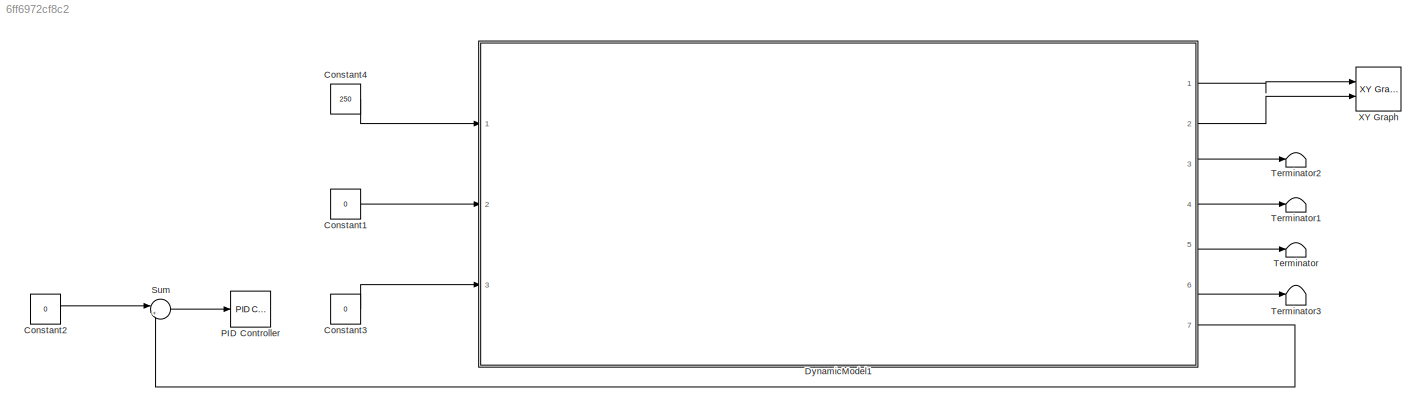
MODEL slx_6ff6972cf8c2
KIND model
CONFIG AbsTol = auto
CONFIG EnableMultiTasking = off
CONFIG FixedStep = 0.1
CONFIG MaxStep = auto
CONFIG MinStep = auto
CONFIG RelTol = 1e-3
CONFIG SampleTimeConstraint = Unconstrained
CONFIG Solver = VariableStepAuto
CONFIG SolverName = VariableStepAuto
CONFIG StartTime = 0.0
CONFIG StopTime = 100
BLOCK [Constant] Constant1
  Value = 0
BLOCK [Constant] Constant2
  Value = 0
BLOCK [Constant] Constant3
  Value = 0
BLOCK [Constant] Constant4
  Value = 250
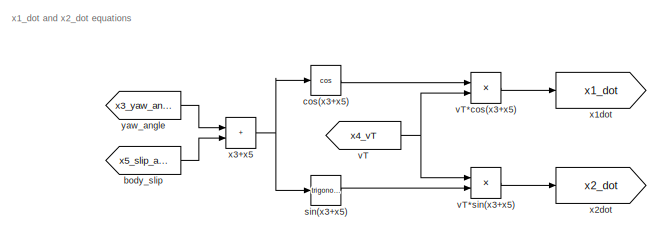
[diagram: DynamicModel1 - part 1/10, top left region]
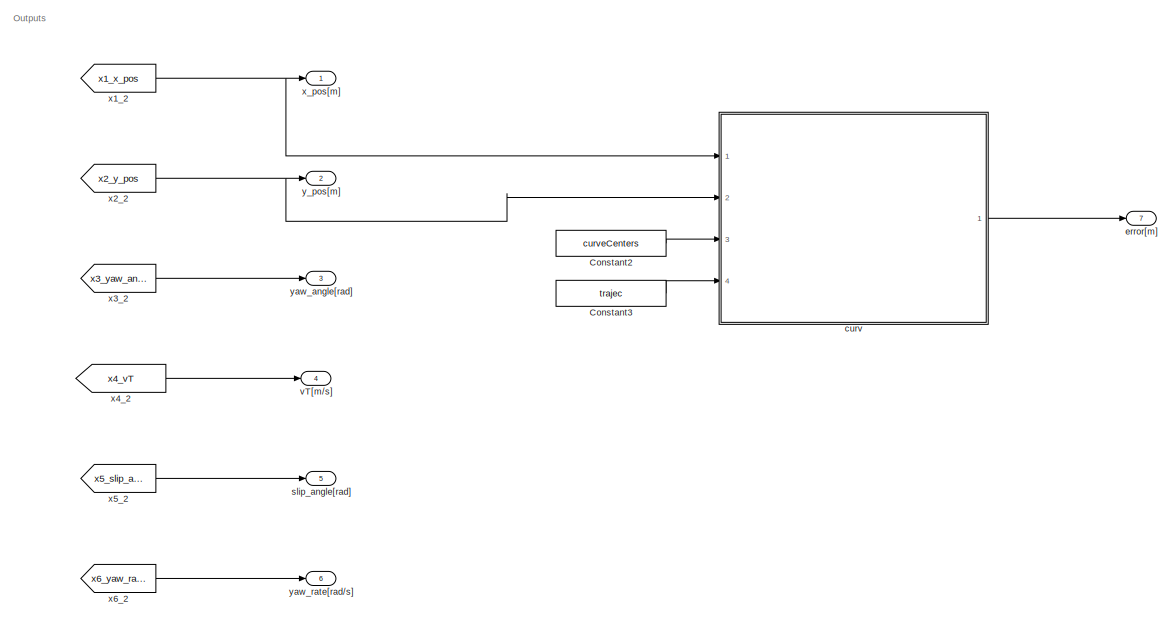
[diagram: DynamicModel1 - part 2/10, top right region]
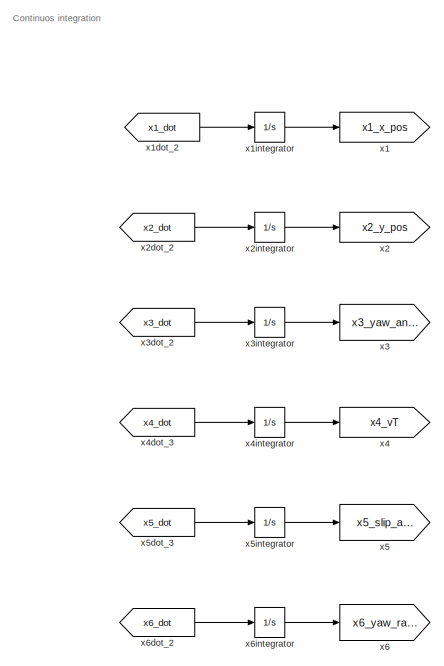
[diagram: DynamicModel1 - part 3/10, top right region]
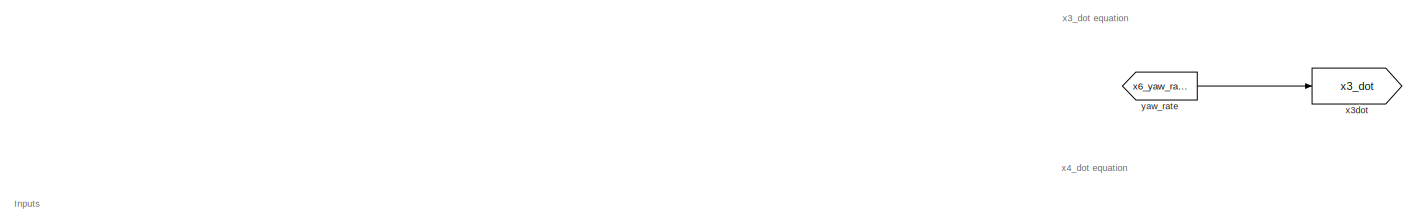
[diagram: DynamicModel1 - part 4/10, top left region]
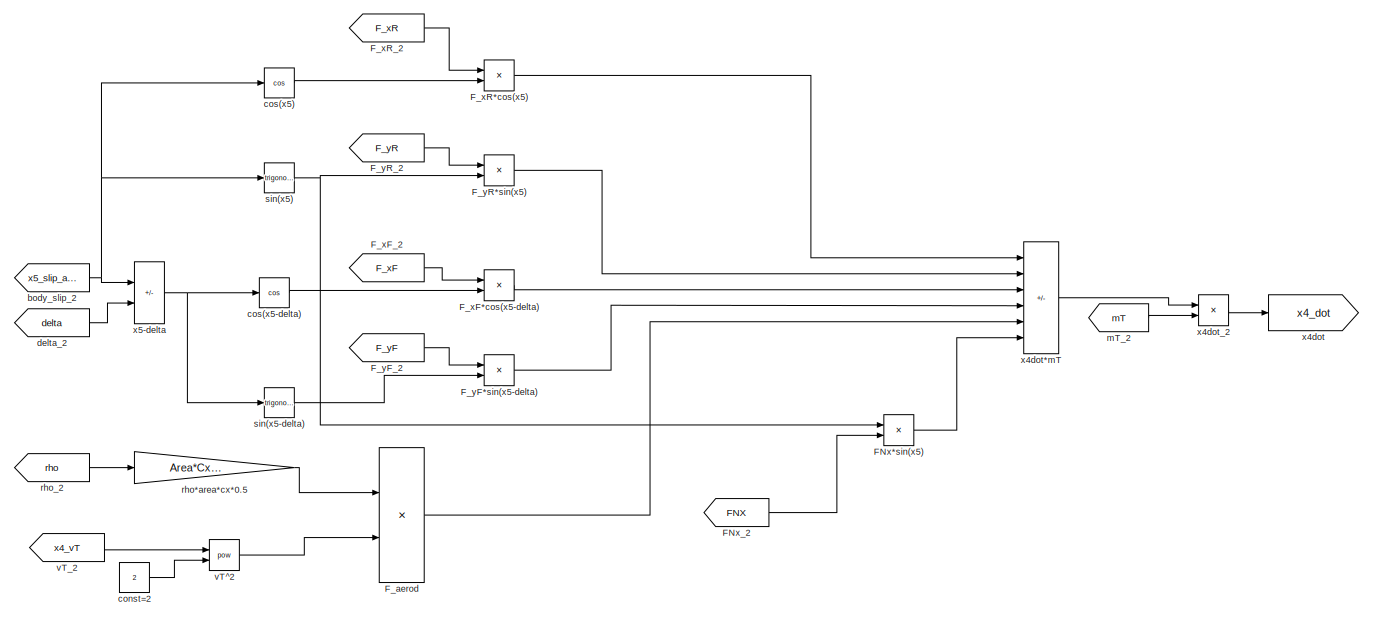
[diagram: DynamicModel1 - part 5/10, top left region]
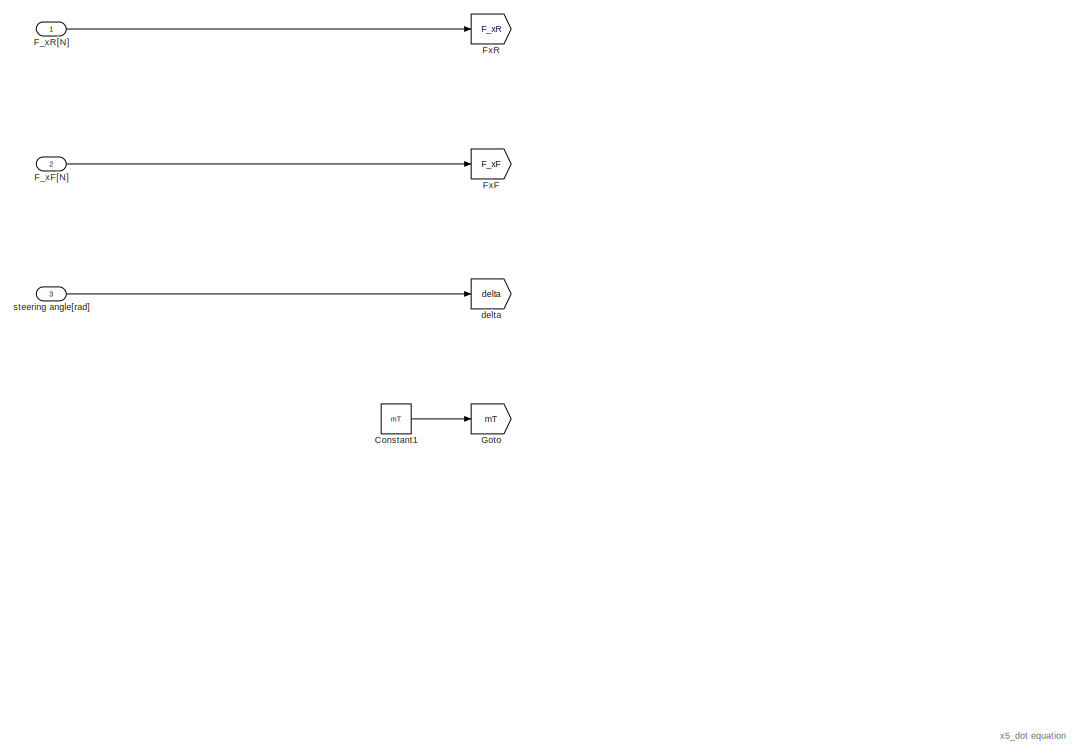
[diagram: DynamicModel1 - part 6/10, top left region]
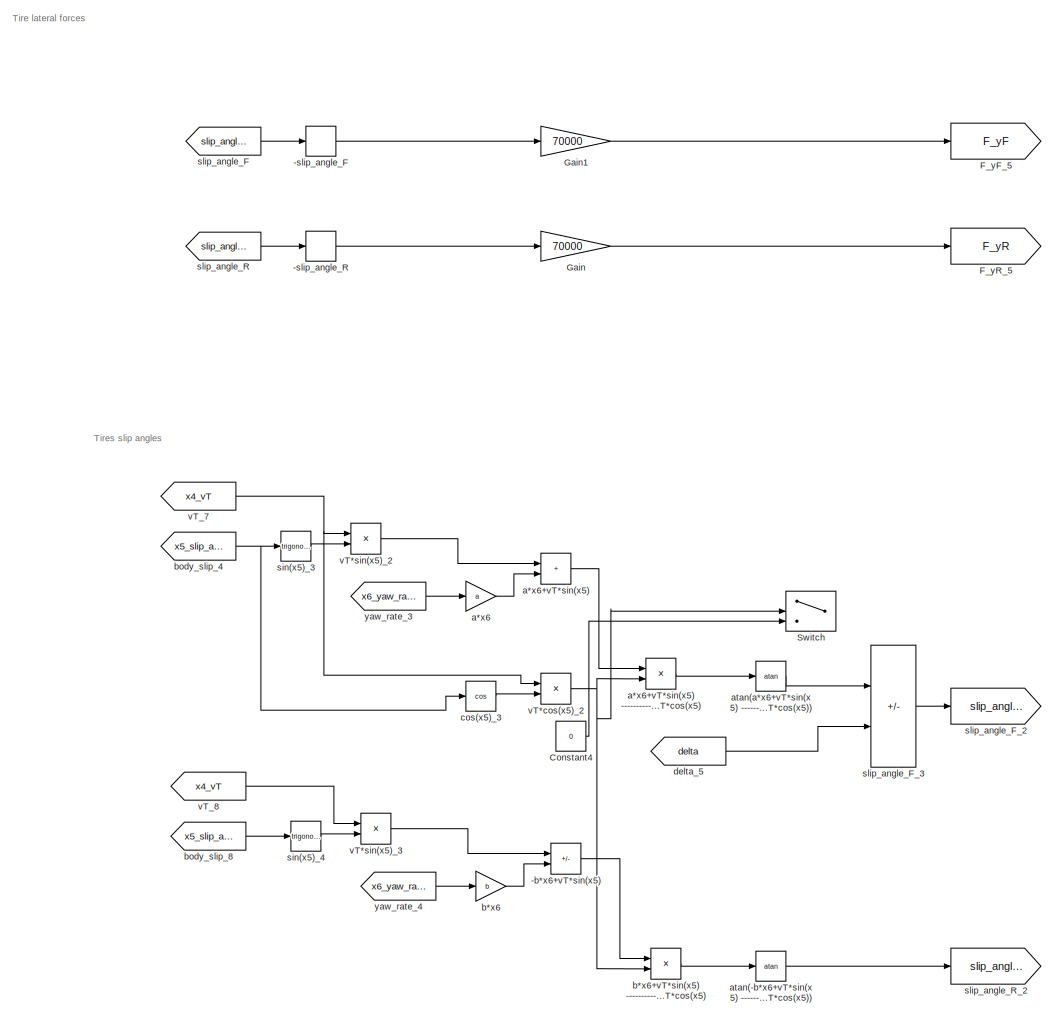
[diagram: DynamicModel1 - part 7/10, top center region]
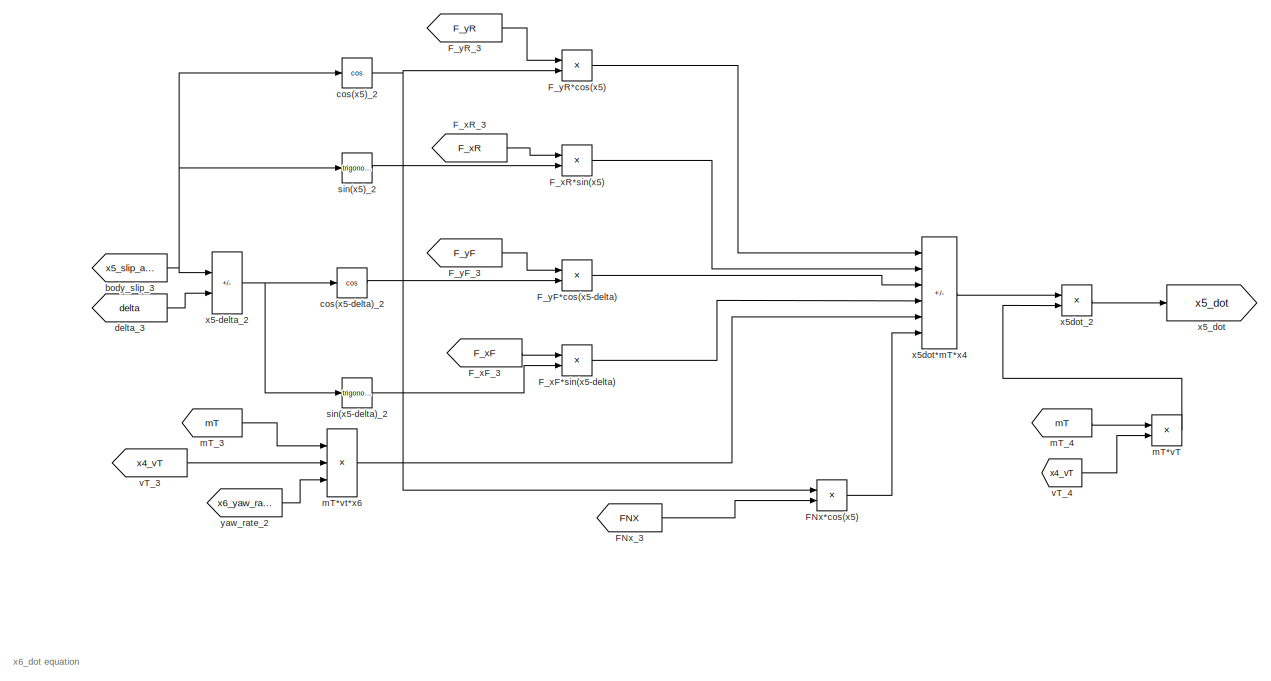
[diagram: DynamicModel1 - part 8/10, middle left region]
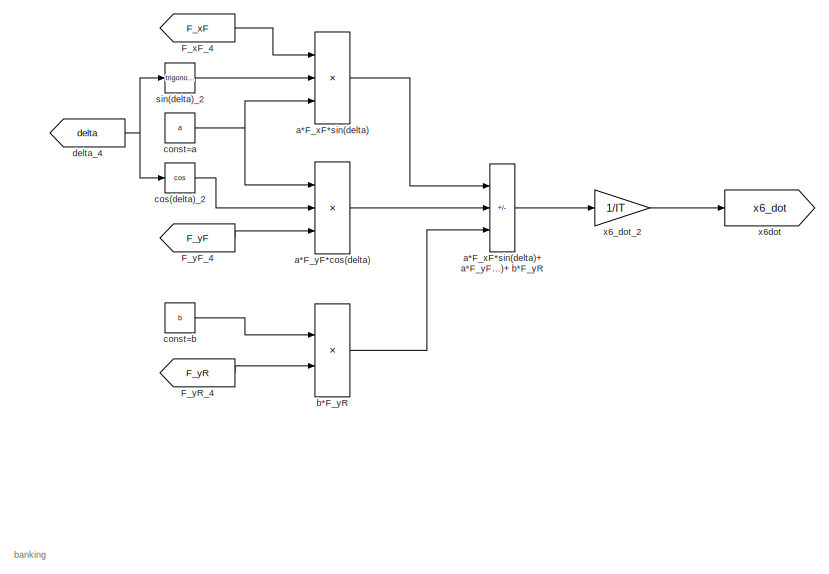
[diagram: DynamicModel1 - part 9/10, bottom left region]
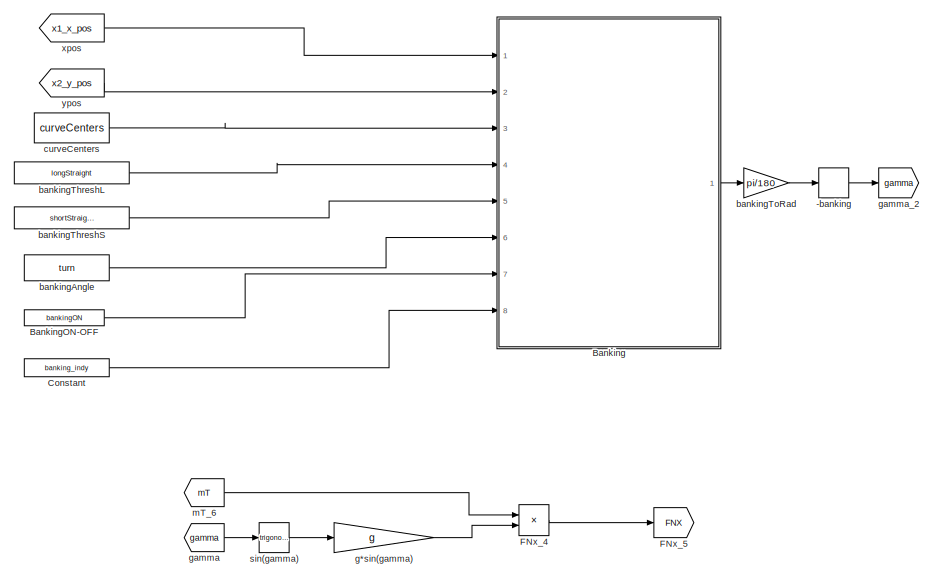
[diagram: DynamicModel1 - part 10/10, bottom left region]
BLOCK [SubSystem] DynamicModel1
  Ports = [3, 7]
  RequestExecContextInheritance = off
BLOCK [Sum] DynamicModel1/-b*x6+vT*sin(x5)
  IconShape = rectangular
  Inputs = +-
  Ports = [2, 1]
BLOCK [UnaryMinus] DynamicModel1/-banking
  Commented = on
BLOCK [UnaryMinus] DynamicModel1/-slip_angle_F
BLOCK [UnaryMinus] DynamicModel1/-slip_angle_R
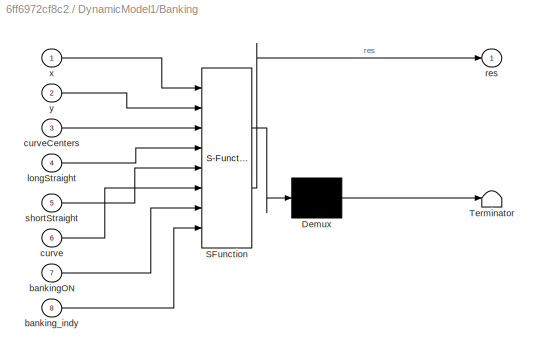
BLOCK [SubSystem] DynamicModel1/Banking
  Commented = on
  ErrorFcn = Stateflow.Translate.translate
  PermitHierarchicalResolution = ExplicitOnly
  Ports = [8, 1]
  RequestExecContextInheritance = off
  SFBlockType = MATLAB Function
  TreatAsAtomicUnit = on
BLOCK [Demux] DynamicModel1/Banking/ Demux 
  Outputs = 1
  Ports = [1, 1]
BLOCK [S-Function] DynamicModel1/Banking/ SFunction 
  EnableBusSupport = on
  FunctionName = sf_sfun
  PortCounts = [8 2]
  Ports = [8, 2]
  SFcnIsStateOwnerBlock = off
  SFunctionDeploymentMode = off
  Tag = Stateflow S-Function 3
BLOCK [Terminator] DynamicModel1/Banking/ Terminator 
BLOCK [Inport] DynamicModel1/Banking/bankingON
  Port = 7
BLOCK [Inport] DynamicModel1/Banking/banking_indy
  Port = 8
BLOCK [Inport] DynamicModel1/Banking/curve
  Port = 6
BLOCK [Inport] DynamicModel1/Banking/curveCenters
  Port = 3
BLOCK [Inport] DynamicModel1/Banking/longStraight
  Port = 4
BLOCK [Outport] DynamicModel1/Banking/res
BLOCK [Inport] DynamicModel1/Banking/shortStraight
  Port = 5
BLOCK [Inport] DynamicModel1/Banking/x
BLOCK [Inport] DynamicModel1/Banking/y
  Port = 2
BLOCK [Constant] DynamicModel1/BankingON-OFF
  Commented = on
  Value = bankingON
BLOCK [Constant] DynamicModel1/Constant
  Commented = on
  Value = banking_indy
BLOCK [Constant] DynamicModel1/Constant1
  Value = mT
BLOCK [Constant] DynamicModel1/Constant2
  Value = curveCenters
BLOCK [Constant] DynamicModel1/Constant3
  Value = trajec
BLOCK [Constant] DynamicModel1/Constant4
  Value = 0
BLOCK [Product] DynamicModel1/FNx*cos(x5)
  Commented = on
  Ports = [2, 1]
BLOCK [Product] DynamicModel1/FNx*sin(x5)
  Commented = on
  Ports = [2, 1]
BLOCK [From] DynamicModel1/FNx_2
  Commented = on
  GotoTag = FNX
BLOCK [From] DynamicModel1/FNx_3
  Commented = on
  GotoTag = FNX
BLOCK [Product] DynamicModel1/FNx_4
  Commented = on
  Ports = [2, 1]
BLOCK [Goto] DynamicModel1/FNx_5
  Commented = on
  GotoTag = FNX
BLOCK [Product] DynamicModel1/F_aerod
  Commented = on
  Ports = [2, 1]
BLOCK [Product] DynamicModel1/F_xF*cos(x5-delta)
  Ports = [2, 1]
BLOCK [Product] DynamicModel1/F_xF*sin(x5-delta)
  Ports = [2, 1]
BLOCK [Inport] DynamicModel1/F_xF[N]
  Port = 2
  Unit = N
BLOCK [From] DynamicModel1/F_xF_2
  GotoTag = F_xF
BLOCK [From] DynamicModel1/F_xF_3
  GotoTag = F_xF
BLOCK [From] DynamicModel1/F_xF_4
  GotoTag = F_xF
BLOCK [Product] DynamicModel1/F_xR*cos(x5)
  Ports = [2, 1]
BLOCK [Product] DynamicModel1/F_xR*sin(x5)
  Ports = [2, 1]
BLOCK [Inport] DynamicModel1/F_xR[N]
  Unit = N
BLOCK [From] DynamicModel1/F_xR_2
  GotoTag = F_xR
BLOCK [From] DynamicModel1/F_xR_3
  GotoTag = F_xR
BLOCK [Product] DynamicModel1/F_yF*cos(x5-delta)
  Ports = [2, 1]
BLOCK [Product] DynamicModel1/F_yF*sin(x5-delta)
  Ports = [2, 1]
BLOCK [From] DynamicModel1/F_yF_2
  GotoTag = F_yF
BLOCK [From] DynamicModel1/F_yF_3
  GotoTag = F_yF
BLOCK [From] DynamicModel1/F_yF_4
  GotoTag = F_yF
BLOCK [Goto] DynamicModel1/F_yF_5
  GotoTag = F_yF
BLOCK [Product] DynamicModel1/F_yR*cos(x5)
  Ports = [2, 1]
BLOCK [Product] DynamicModel1/F_yR*sin(x5)
  Ports = [2, 1]
BLOCK [From] DynamicModel1/F_yR_2
  GotoTag = F_yR
BLOCK [From] DynamicModel1/F_yR_3
  GotoTag = F_yR
BLOCK [From] DynamicModel1/F_yR_4
  GotoTag = F_yR
BLOCK [Goto] DynamicModel1/F_yR_5
  GotoTag = F_yR
BLOCK [Goto] DynamicModel1/FxF
  GotoTag = F_xF
BLOCK [Goto] DynamicModel1/FxR
  GotoTag = F_xR
BLOCK [Gain] DynamicModel1/Gain
  Gain = 70000
BLOCK [Gain] DynamicModel1/Gain1
  Gain = 70000
BLOCK [Goto] DynamicModel1/Goto
  GotoTag = mT
BLOCK [Switch] DynamicModel1/Switch
  Criteria = u2 > Threshold
  InputSameDT = off
  SaturateOnIntegerOverflow = off
BLOCK [Product] DynamicModel1/a*F_xF*sin(delta)
  Inputs = 3
  Ports = [3, 1]
BLOCK [Sum] DynamicModel1/a*F_xF*sin(delta)+ a*F_yF*cos(delta)+ b*F_yR
  IconShape = rectangular
  Inputs = ++-
  NameLocation = top
  Ports = [3, 1]
BLOCK [Product] DynamicModel1/a*F_yF*cos(delta)
  Inputs = 3
  Ports = [3, 1]
BLOCK [Gain] DynamicModel1/a*x6
  Gain = a
BLOCK [Sum] DynamicModel1/a*x6+vT*sin(x5)
  IconShape = rectangular
  Ports = [2, 1]
BLOCK [Product] DynamicModel1/a*x6+vT*sin(x5) -------------------- vT*cos(x5)
  Inputs = */
  Ports = [2, 1]
BLOCK [Trigonometry] DynamicModel1/atan(-b*x6+vT*sin(x5) -------------------- vT*cos(x5))
  Operator = atan
  Ports = [1, 1]
BLOCK [Trigonometry] DynamicModel1/atan(a*x6+vT*sin(x5) -------------------- vT*cos(x5))
  Operator = atan
  Ports = [1, 1]
BLOCK [Product] DynamicModel1/b*F_yR
  Ports = [2, 1]
BLOCK [Gain] DynamicModel1/b*x6
  Gain = b
BLOCK [Product] DynamicModel1/b*x6+vT*sin(x5) -------------------- vT*cos(x5)
  Inputs = */
  Ports = [2, 1]
BLOCK [Constant] DynamicModel1/bankingAngle
  Commented = on
  Value = turn
BLOCK [Constant] DynamicModel1/bankingThreshL
  Commented = on
  Value = longStraight
BLOCK [Constant] DynamicModel1/bankingThreshS
  Commented = on
  Value = shortStraight
BLOCK [Gain] DynamicModel1/bankingToRad
  Commented = on
  Gain = pi/180
BLOCK [From] DynamicModel1/body_slip
  GotoTag = x5_slip_angle
BLOCK [From] DynamicModel1/body_slip_2
  GotoTag = x5_slip_angle
BLOCK [From] DynamicModel1/body_slip_3
  GotoTag = x5_slip_angle
BLOCK [From] DynamicModel1/body_slip_4
  GotoTag = x5_slip_angle
BLOCK [From] DynamicModel1/body_slip_8
  GotoTag = x5_slip_angle
BLOCK [Constant] DynamicModel1/const=2
  Commented = on
  Value = 2
BLOCK [Constant] DynamicModel1/const=a
  Value = a
BLOCK [Constant] DynamicModel1/const=b
  Value = b
BLOCK [Trigonometry] DynamicModel1/cos(delta)_2
  Operator = cos
  Ports = [1, 1]
BLOCK [Trigonometry] DynamicModel1/cos(x3+x5)
  Operator = cos
  Ports = [1, 1]
BLOCK [Trigonometry] DynamicModel1/cos(x5)
  Operator = cos
  Ports = [1, 1]
BLOCK [Trigonometry] DynamicModel1/cos(x5)_2
  Operator = cos
  Ports = [1, 1]
BLOCK [Trigonometry] DynamicModel1/cos(x5)_3
  Operator = cos
  Ports = [1, 1]
BLOCK [Trigonometry] DynamicModel1/cos(x5-delta)
  Operator = cos
  Ports = [1, 1]
BLOCK [Trigonometry] DynamicModel1/cos(x5-delta)_2
  Operator = cos
  Ports = [1, 1]
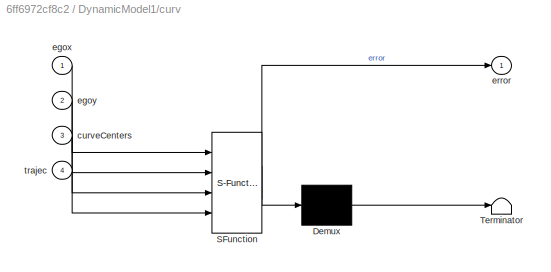
BLOCK [SubSystem] DynamicModel1/curv
  ErrorFcn = Stateflow.Translate.translate
  PermitHierarchicalResolution = ExplicitOnly
  Ports = [4, 1]
  RequestExecContextInheritance = off
  SFBlockType = MATLAB Function
  TreatAsAtomicUnit = on
BLOCK [Demux] DynamicModel1/curv/ Demux 
  Outputs = 1
  Ports = [1, 1]
BLOCK [S-Function] DynamicModel1/curv/ SFunction 
  EnableBusSupport = on
  FunctionName = sf_sfun
  PortCounts = [4 2]
  Ports = [4, 2]
  SFcnIsStateOwnerBlock = off
  SFunctionDeploymentMode = off
  Tag = Stateflow S-Function 1
BLOCK [Terminator] DynamicModel1/curv/ Terminator 
BLOCK [Inport] DynamicModel1/curv/curveCenters
  Port = 3
BLOCK [Inport] DynamicModel1/curv/egox
BLOCK [Inport] DynamicModel1/curv/egoy
  Port = 2
BLOCK [Outport] DynamicModel1/curv/error
BLOCK [Inport] DynamicModel1/curv/trajec
  Port = 4
BLOCK [Constant] DynamicModel1/curveCenters
  Commented = on
  Value = curveCenters
BLOCK [Goto] DynamicModel1/delta
  GotoTag = delta
BLOCK [From] DynamicModel1/delta_2
  GotoTag = delta
BLOCK [From] DynamicModel1/delta_3
  GotoTag = delta
BLOCK [From] DynamicModel1/delta_4
  GotoTag = delta
BLOCK [From] DynamicModel1/delta_5
  GotoTag = delta
BLOCK [Outport] DynamicModel1/error[m]
  Port = 7
  Unit = m
BLOCK [Gain] DynamicModel1/g*sin(gamma)
  Commented = on
  Gain = g
BLOCK [From] DynamicModel1/gamma
  Commented = on
  GotoTag = gamma
BLOCK [Goto] DynamicModel1/gamma_2
  Commented = on
  GotoTag = gamma
BLOCK [Product] DynamicModel1/mT*vT
  Ports = [2, 1]
BLOCK [Product] DynamicModel1/mT*vt*x6
  Inputs = 3
  Ports = [3, 1]
BLOCK [From] DynamicModel1/mT_2
  GotoTag = mT
BLOCK [From] DynamicModel1/mT_3
  GotoTag = mT
BLOCK [From] DynamicModel1/mT_4
  GotoTag = mT
BLOCK [From] DynamicModel1/mT_6
  Commented = on
  GotoTag = mT
BLOCK [Gain] DynamicModel1/rho*area*cx*0.5
  Commented = on
  Gain = Area*Cx*0.5
BLOCK [From] DynamicModel1/rho_2
  Commented = on
  GotoTag = rho
BLOCK [Trigonometry] DynamicModel1/sin(delta)_2
  Ports = [1, 1]
BLOCK [Trigonometry] DynamicModel1/sin(gamma)
  Commented = on
  Ports = [1, 1]
BLOCK [Trigonometry] DynamicModel1/sin(x3+x5)
  Ports = [1, 1]
BLOCK [Trigonometry] DynamicModel1/sin(x5)
  Ports = [1, 1]
BLOCK [Trigonometry] DynamicModel1/sin(x5)_2
  Ports = [1, 1]
BLOCK [Trigonometry] DynamicModel1/sin(x5)_3
  Ports = [1, 1]
BLOCK [Trigonometry] DynamicModel1/sin(x5)_4
  Ports = [1, 1]
BLOCK [Trigonometry] DynamicModel1/sin(x5-delta)
  Ports = [1, 1]
BLOCK [Trigonometry] DynamicModel1/sin(x5-delta)_2
  Ports = [1, 1]
BLOCK [Outport] DynamicModel1/slip_angle[rad]
  Port = 5
  Unit = rad
BLOCK [From] DynamicModel1/slip_angle_F
  GotoTag = slip_angle_F
BLOCK [Goto] DynamicModel1/slip_angle_F_2
  GotoTag = slip_angle_F
BLOCK [Sum] DynamicModel1/slip_angle_F_3
  IconShape = rectangular
  Inputs = +-
  Ports = [2, 1]
BLOCK [From] DynamicModel1/slip_angle_R
  GotoTag = slip_angle_R
BLOCK [Goto] DynamicModel1/slip_angle_R_2
  GotoTag = slip_angle_R
BLOCK [Inport] DynamicModel1/steering angle[rad]
  Port = 3
  Unit = rad
BLOCK [From] DynamicModel1/vT
  GotoTag = x4_vT
BLOCK [Product] DynamicModel1/vT*cos(x3+x5)
  Ports = [2, 1]
BLOCK [Product] DynamicModel1/vT*cos(x5)_2
  Ports = [2, 1]
BLOCK [Product] DynamicModel1/vT*sin(x3+x5)
  Ports = [2, 1]
BLOCK [Product] DynamicModel1/vT*sin(x5)_2
  Ports = [2, 1]
BLOCK [Product] DynamicModel1/vT*sin(x5)_3
  Ports = [2, 1]
BLOCK [Outport] DynamicModel1/vT[m//s]
  Port = 4
  Unit = m/s
BLOCK [Math] DynamicModel1/vT^2
  Commented = on
  Operator = pow
  Ports = [2, 1]
BLOCK [From] DynamicModel1/vT_2
  Commented = on
  GotoTag = x4_vT
BLOCK [From] DynamicModel1/vT_3
  GotoTag = x4_vT
BLOCK [From] DynamicModel1/vT_4
  GotoTag = x4_vT
BLOCK [From] DynamicModel1/vT_7
  GotoTag = x4_vT
BLOCK [From] DynamicModel1/vT_8
  GotoTag = x4_vT
BLOCK [Goto] DynamicModel1/x1
  GotoTag = x1_x_pos
BLOCK [From] DynamicModel1/x1_2
  GotoTag = x1_x_pos
BLOCK [Goto] DynamicModel1/x1dot
  GotoTag = x1_dot
BLOCK [From] DynamicModel1/x1dot_2
  GotoTag = x1_dot
BLOCK [Integrator] DynamicModel1/x1integrator
  InitialCondition = init_x_pos
  Ports = [1, 1]
BLOCK [Goto] DynamicModel1/x2
  GotoTag = x2_y_pos
BLOCK [From] DynamicModel1/x2_2
  GotoTag = x2_y_pos
BLOCK [Goto] DynamicModel1/x2dot
  GotoTag = x2_dot
BLOCK [From] DynamicModel1/x2dot_2
  GotoTag = x2_dot
BLOCK [Integrator] DynamicModel1/x2integrator
  InitialCondition = init_y_pos
  Ports = [1, 1]
BLOCK [Goto] DynamicModel1/x3
  GotoTag = x3_yaw_angle
BLOCK [Sum] DynamicModel1/x3+x5
  IconShape = rectangular
  Ports = [2, 1]
BLOCK [From] DynamicModel1/x3_2
  GotoTag = x3_yaw_angle
BLOCK [Goto] DynamicModel1/x3dot
  GotoTag = x3_dot
BLOCK [From] DynamicModel1/x3dot_2
  GotoTag = x3_dot
BLOCK [Integrator] DynamicModel1/x3integrator
  InitialCondition = init_yaw
  Ports = [1, 1]
BLOCK [Goto] DynamicModel1/x4
  GotoTag = x4_vT
BLOCK [From] DynamicModel1/x4_2
  GotoTag = x4_vT
BLOCK [Goto] DynamicModel1/x4dot
  GotoTag = x4_dot
BLOCK [Sum] DynamicModel1/x4dot*mT
  IconShape = rectangular
  Inputs = ++++-+
  Ports = [6, 1]
BLOCK [Product] DynamicModel1/x4dot_2
  Inputs = */
  Ports = [2, 1]
BLOCK [From] DynamicModel1/x4dot_3
  GotoTag = x4_dot
BLOCK [Integrator] DynamicModel1/x4integrator
  InitialCondition = init_vel
  LimitOutput = on
  LowerSaturationLimit = 0
  Ports = [1, 1]
  UpperSaturationLimit = 70
BLOCK [Goto] DynamicModel1/x5
  GotoTag = x5_slip_angle
BLOCK [Sum] DynamicModel1/x5-delta
  IconShape = rectangular
  Inputs = +-
  Ports = [2, 1]
BLOCK [Sum] DynamicModel1/x5-delta_2
  IconShape = rectangular
  Inputs = +-
  Ports = [2, 1]
BLOCK [From] DynamicModel1/x5_2
  GotoTag = x5_slip_angle
BLOCK [Goto] DynamicModel1/x5_dot
  GotoTag = x5_dot
BLOCK [Sum] DynamicModel1/x5dot*mT*x4
  IconShape = rectangular
  Inputs = +-+--+
  Ports = [6, 1]
BLOCK [Product] DynamicModel1/x5dot_2
  Inputs = */
  Ports = [2, 1]
BLOCK [From] DynamicModel1/x5dot_3
  GotoTag = x5_dot
BLOCK [Integrator] DynamicModel1/x5integrator
  Ports = [1, 1]
BLOCK [Goto] DynamicModel1/x6
  GotoTag = x6_yaw_rate
BLOCK [From] DynamicModel1/x6_2
  GotoTag = x6_yaw_rate
BLOCK [Gain] DynamicModel1/x6_dot_2
  Gain = 1/IT
BLOCK [Goto] DynamicModel1/x6dot
  GotoTag = x6_dot
BLOCK [From] DynamicModel1/x6dot_2
  GotoTag = x6_dot
BLOCK [Integrator] DynamicModel1/x6integrator
  Ports = [1, 1]
BLOCK [Outport] DynamicModel1/x_pos[m]
  Unit = m
BLOCK [From] DynamicModel1/xpos
  Commented = on
  GotoTag = x1_x_pos
BLOCK [Outport] DynamicModel1/y_pos[m]
  Port = 2
  Unit = m
BLOCK [From] DynamicModel1/yaw_angle
  GotoTag = x3_yaw_angle
BLOCK [Outport] DynamicModel1/yaw_angle[rad]
  Port = 3
  Unit = rad
BLOCK [From] DynamicModel1/yaw_rate
  GotoTag = x6_yaw_rate
BLOCK [Outport] DynamicModel1/yaw_rate[rad//s]
  Port = 6
  Unit = rad/s
BLOCK [From] DynamicModel1/yaw_rate_2
  GotoTag = x6_yaw_rate
BLOCK [From] DynamicModel1/yaw_rate_3
  GotoTag = x6_yaw_rate
BLOCK [From] DynamicModel1/yaw_rate_4
  GotoTag = x6_yaw_rate
BLOCK [From] DynamicModel1/ypos
  Commented = on
  GotoTag = x2_y_pos
BLOCK [Reference] PID Controller  REF=simulink/Continuous/PID Controller
  Ports = [1, 1]
  SourceBlock = simulink/Continuous/PID Controller
  SourceProductBaseCode = SL
  SourceType = PID 1dof
BLOCK [Sum] Sum
  Inputs = |+-
  Ports = [2, 1]
BLOCK [Terminator] Terminator
BLOCK [Terminator] Terminator1
BLOCK [Terminator] Terminator2
BLOCK [Terminator] Terminator3
BLOCK [Reference] XY Graph  REF=simulink/Sinks/XY Graph
  Ports = [2]
  SourceBlock = simulink/Sinks/XY Graph
  SourceProductBaseCode = SL
  SourceType = XY scope.
ANNOTATION DynamicModel1: Continuos integration
ANNOTATION DynamicModel1: Inputs
ANNOTATION DynamicModel1: Outputs
ANNOTATION DynamicModel1: Tire lateral forces
ANNOTATION DynamicModel1: Tires slip angles
ANNOTATION DynamicModel1: banking
ANNOTATION DynamicModel1: x1_dot and x2_dot equations
ANNOTATION DynamicModel1: x3_dot equation
ANNOTATION DynamicModel1: x4_dot equation
ANNOTATION DynamicModel1: x5_dot equation
ANNOTATION DynamicModel1: x6_dot equation
LINE Constant1:1 -> DynamicModel1:2
LINE Constant2:1 -> Sum:1
LINE Constant3:1 -> DynamicModel1:3
LINE Constant4:1 -> DynamicModel1:1
LINE DynamicModel1/-b*x6+vT*sin(x5):1 -> DynamicModel1/b*x6+vT*sin(x5) -------------------- vT*cos(x5):1
LINE DynamicModel1/-banking:1 -> DynamicModel1/gamma_2:1
LINE DynamicModel1/-slip_angle_F:1 -> DynamicModel1/Gain1:1
LINE DynamicModel1/-slip_angle_R:1 -> DynamicModel1/Gain:1
LINE DynamicModel1/Banking:1 -> DynamicModel1/bankingToRad:1
LINE DynamicModel1/BankingON-OFF:1 -> DynamicModel1/Banking:7
LINE DynamicModel1/Constant1:1 -> DynamicModel1/Goto:1
LINE DynamicModel1/Constant2:1 -> DynamicModel1/curv:3
LINE DynamicModel1/Constant3:1 -> DynamicModel1/curv:4
LINE DynamicModel1/Constant4:1 -> DynamicModel1/Switch:3
LINE DynamicModel1/Constant:1 -> DynamicModel1/Banking:8
LINE DynamicModel1/FNx*cos(x5):1 -> DynamicModel1/x5dot*mT*x4:6
LINE DynamicModel1/FNx*sin(x5):1 -> DynamicModel1/x4dot*mT:6
LINE DynamicModel1/FNx_2:1 -> DynamicModel1/FNx*sin(x5):2
LINE DynamicModel1/FNx_3:1 -> DynamicModel1/FNx*cos(x5):2
LINE DynamicModel1/FNx_4:1 -> DynamicModel1/FNx_5:1
LINE DynamicModel1/F_aerod:1 -> DynamicModel1/x4dot*mT:5
LINE DynamicModel1/F_xF*cos(x5-delta):1 -> DynamicModel1/x4dot*mT:3
LINE DynamicModel1/F_xF*sin(x5-delta):1 -> DynamicModel1/x5dot*mT*x4:4
LINE DynamicModel1/F_xF[N]:1 -> DynamicModel1/FxF:1
LINE DynamicModel1/F_xF_2:1 -> DynamicModel1/F_xF*cos(x5-delta):1
LINE DynamicModel1/F_xF_3:1 -> DynamicModel1/F_xF*sin(x5-delta):1
LINE DynamicModel1/F_xF_4:1 -> DynamicModel1/a*F_xF*sin(delta):1
LINE DynamicModel1/F_xR*cos(x5):1 -> DynamicModel1/x4dot*mT:1
LINE DynamicModel1/F_xR*sin(x5):1 -> DynamicModel1/x5dot*mT*x4:2
LINE DynamicModel1/F_xR[N]:1 -> DynamicModel1/FxR:1
LINE DynamicModel1/F_xR_2:1 -> DynamicModel1/F_xR*cos(x5):1
LINE DynamicModel1/F_xR_3:1 -> DynamicModel1/F_xR*sin(x5):1
LINE DynamicModel1/F_yF*cos(x5-delta):1 -> DynamicModel1/x5dot*mT*x4:3
LINE DynamicModel1/F_yF*sin(x5-delta):1 -> DynamicModel1/x4dot*mT:4
LINE DynamicModel1/F_yF_2:1 -> DynamicModel1/F_yF*sin(x5-delta):1
LINE DynamicModel1/F_yF_3:1 -> DynamicModel1/F_yF*cos(x5-delta):1
LINE DynamicModel1/F_yF_4:1 -> DynamicModel1/a*F_yF*cos(delta):3
LINE DynamicModel1/F_yR*cos(x5):1 -> DynamicModel1/x5dot*mT*x4:1
LINE DynamicModel1/F_yR*sin(x5):1 -> DynamicModel1/x4dot*mT:2
LINE DynamicModel1/F_yR_2:1 -> DynamicModel1/F_yR*sin(x5):1
LINE DynamicModel1/F_yR_3:1 -> DynamicModel1/F_yR*cos(x5):1
LINE DynamicModel1/F_yR_4:1 -> DynamicModel1/b*F_yR:2
LINE DynamicModel1/Gain1:1 -> DynamicModel1/F_yF_5:1
LINE DynamicModel1/Gain:1 -> DynamicModel1/F_yR_5:1
LINE DynamicModel1/a*F_xF*sin(delta)+ a*F_yF*cos(delta)+ b*F_yR:1 -> DynamicModel1/x6_dot_2:1
LINE DynamicModel1/a*F_xF*sin(delta):1 -> DynamicModel1/a*F_xF*sin(delta)+ a*F_yF*cos(delta)+ b*F_yR:1
LINE DynamicModel1/a*F_yF*cos(delta):1 -> DynamicModel1/a*F_xF*sin(delta)+ a*F_yF*cos(delta)+ b*F_yR:2
LINE DynamicModel1/a*x6+vT*sin(x5) -------------------- vT*cos(x5):1 -> DynamicModel1/atan(a*x6+vT*sin(x5) -------------------- vT*cos(x5)):1
LINE DynamicModel1/a*x6+vT*sin(x5):1 -> DynamicModel1/a*x6+vT*sin(x5) -------------------- vT*cos(x5):1
LINE DynamicModel1/a*x6:1 -> DynamicModel1/a*x6+vT*sin(x5):2
LINE DynamicModel1/atan(-b*x6+vT*sin(x5) -------------------- vT*cos(x5)):1 -> DynamicModel1/slip_angle_R_2:1
LINE DynamicModel1/atan(a*x6+vT*sin(x5) -------------------- vT*cos(x5)):1 -> DynamicModel1/slip_angle_F_3:1
LINE DynamicModel1/b*F_yR:1 -> DynamicModel1/a*F_xF*sin(delta)+ a*F_yF*cos(delta)+ b*F_yR:3
LINE DynamicModel1/b*x6+vT*sin(x5) -------------------- vT*cos(x5):1 -> DynamicModel1/atan(-b*x6+vT*sin(x5) -------------------- vT*cos(x5)):1
LINE DynamicModel1/b*x6:1 -> DynamicModel1/-b*x6+vT*sin(x5):2
LINE DynamicModel1/bankingAngle:1 -> DynamicModel1/Banking:6
LINE DynamicModel1/bankingThreshL:1 -> DynamicModel1/Banking:4
LINE DynamicModel1/bankingThreshS:1 -> DynamicModel1/Banking:5
LINE DynamicModel1/bankingToRad:1 -> DynamicModel1/-banking:1
LINE DynamicModel1/body_slip:1 -> DynamicModel1/x3+x5:2
NET DynamicModel1/body_slip_2:1 -> DynamicModel1/cos(x5):1, DynamicModel1/sin(x5):1, DynamicModel1/x5-delta:1
NET DynamicModel1/body_slip_3:1 -> DynamicModel1/cos(x5)_2:1, DynamicModel1/sin(x5)_2:1, DynamicModel1/x5-delta_2:1
NET DynamicModel1/body_slip_4:1 -> DynamicModel1/cos(x5)_3:1, DynamicModel1/sin(x5)_3:1
LINE DynamicModel1/body_slip_8:1 -> DynamicModel1/sin(x5)_4:1
LINE DynamicModel1/const=2:1 -> DynamicModel1/vT^2:2
NET DynamicModel1/const=a:1 -> DynamicModel1/a*F_xF*sin(delta):3, DynamicModel1/a*F_yF*cos(delta):1
LINE DynamicModel1/const=b:1 -> DynamicModel1/b*F_yR:1
LINE DynamicModel1/cos(delta)_2:1 -> DynamicModel1/a*F_yF*cos(delta):2
LINE DynamicModel1/cos(x3+x5):1 -> DynamicModel1/vT*cos(x3+x5):1
LINE DynamicModel1/cos(x5):1 -> DynamicModel1/F_xR*cos(x5):2
NET DynamicModel1/cos(x5)_2:1 -> DynamicModel1/FNx*cos(x5):1, DynamicModel1/F_yR*cos(x5):2
LINE DynamicModel1/cos(x5)_3:1 -> DynamicModel1/vT*cos(x5)_2:2
LINE DynamicModel1/cos(x5-delta):1 -> DynamicModel1/F_xF*cos(x5-delta):2
LINE DynamicModel1/cos(x5-delta)_2:1 -> DynamicModel1/F_yF*cos(x5-delta):2
LINE DynamicModel1/curv:1 -> DynamicModel1/error[m]:1
LINE DynamicModel1/curveCenters:1 -> DynamicModel1/Banking:3
LINE DynamicModel1/delta_2:1 -> DynamicModel1/x5-delta:2
LINE DynamicModel1/delta_3:1 -> DynamicModel1/x5-delta_2:2
NET DynamicModel1/delta_4:1 -> DynamicModel1/cos(delta)_2:1, DynamicModel1/sin(delta)_2:1
LINE DynamicModel1/delta_5:1 -> DynamicModel1/slip_angle_F_3:2
LINE DynamicModel1/g*sin(gamma):1 -> DynamicModel1/FNx_4:2
LINE DynamicModel1/gamma:1 -> DynamicModel1/sin(gamma):1
LINE DynamicModel1/mT*vT:1 -> DynamicModel1/x5dot_2:2
LINE DynamicModel1/mT*vt*x6:1 -> DynamicModel1/x5dot*mT*x4:5
LINE DynamicModel1/mT_2:1 -> DynamicModel1/x4dot_2:2
LINE DynamicModel1/mT_3:1 -> DynamicModel1/mT*vt*x6:1
LINE DynamicModel1/mT_4:1 -> DynamicModel1/mT*vT:1
LINE DynamicModel1/mT_6:1 -> DynamicModel1/FNx_4:1
LINE DynamicModel1/rho*area*cx*0.5:1 -> DynamicModel1/F_aerod:1
LINE DynamicModel1/rho_2:1 -> DynamicModel1/rho*area*cx*0.5:1
LINE DynamicModel1/sin(delta)_2:1 -> DynamicModel1/a*F_xF*sin(delta):2
LINE DynamicModel1/sin(gamma):1 -> DynamicModel1/g*sin(gamma):1
LINE DynamicModel1/sin(x3+x5):1 -> DynamicModel1/vT*sin(x3+x5):2
NET DynamicModel1/sin(x5):1 -> DynamicModel1/FNx*sin(x5):1, DynamicModel1/F_yR*sin(x5):2
LINE DynamicModel1/sin(x5)_2:1 -> DynamicModel1/F_xR*sin(x5):2
LINE DynamicModel1/sin(x5)_3:1 -> DynamicModel1/vT*sin(x5)_2:2
LINE DynamicModel1/sin(x5)_4:1 -> DynamicModel1/vT*sin(x5)_3:2
LINE DynamicModel1/sin(x5-delta):1 -> DynamicModel1/F_yF*sin(x5-delta):2
LINE DynamicModel1/sin(x5-delta)_2:1 -> DynamicModel1/F_xF*sin(x5-delta):2
LINE DynamicModel1/slip_angle_F:1 -> DynamicModel1/-slip_angle_F:1
LINE DynamicModel1/slip_angle_F_3:1 -> DynamicModel1/slip_angle_F_2:1
LINE DynamicModel1/slip_angle_R:1 -> DynamicModel1/-slip_angle_R:1
LINE DynamicModel1/steering angle[rad]:1 -> DynamicModel1/delta:1
LINE DynamicModel1/vT*cos(x3+x5):1 -> DynamicModel1/x1dot:1
NET DynamicModel1/vT*cos(x5)_2:1 -> DynamicModel1/Switch:2, DynamicModel1/a*x6+vT*sin(x5) -------------------- vT*cos(x5):2, DynamicModel1/b*x6+vT*sin(x5) -------------------- vT*cos(x5):2
LINE DynamicModel1/vT*sin(x3+x5):1 -> DynamicModel1/x2dot:1
LINE DynamicModel1/vT*sin(x5)_2:1 -> DynamicModel1/a*x6+vT*sin(x5):1
LINE DynamicModel1/vT*sin(x5)_3:1 -> DynamicModel1/-b*x6+vT*sin(x5):1
NET DynamicModel1/vT:1 -> DynamicModel1/vT*cos(x3+x5):2, DynamicModel1/vT*sin(x3+x5):1
LINE DynamicModel1/vT^2:1 -> DynamicModel1/F_aerod:2
LINE DynamicModel1/vT_2:1 -> DynamicModel1/vT^2:1
LINE DynamicModel1/vT_3:1 -> DynamicModel1/mT*vt*x6:2
LINE DynamicModel1/vT_4:1 -> DynamicModel1/mT*vT:2
NET DynamicModel1/vT_7:1 -> DynamicModel1/vT*cos(x5)_2:1, DynamicModel1/vT*sin(x5)_2:1
LINE DynamicModel1/vT_8:1 -> DynamicModel1/vT*sin(x5)_3:1
NET DynamicModel1/x1_2:1 -> DynamicModel1/curv:1, DynamicModel1/x_pos[m]:1
LINE DynamicModel1/x1dot_2:1 -> DynamicModel1/x1integrator:1
LINE DynamicModel1/x1integrator:1 -> DynamicModel1/x1:1
NET DynamicModel1/x2_2:1 -> DynamicModel1/curv:2, DynamicModel1/y_pos[m]:1
LINE DynamicModel1/x2dot_2:1 -> DynamicModel1/x2integrator:1
LINE DynamicModel1/x2integrator:1 -> DynamicModel1/x2:1
NET DynamicModel1/x3+x5:1 -> DynamicModel1/cos(x3+x5):1, DynamicModel1/sin(x3+x5):1
LINE DynamicModel1/x3_2:1 -> DynamicModel1/yaw_angle[rad]:1
LINE DynamicModel1/x3dot_2:1 -> DynamicModel1/x3integrator:1
LINE DynamicModel1/x3integrator:1 -> DynamicModel1/x3:1
LINE DynamicModel1/x4_2:1 -> DynamicModel1/vT[m//s]:1
LINE DynamicModel1/x4dot*mT:1 -> DynamicModel1/x4dot_2:1
LINE DynamicModel1/x4dot_2:1 -> DynamicModel1/x4dot:1
LINE DynamicModel1/x4dot_3:1 -> DynamicModel1/x4integrator:1
LINE DynamicModel1/x4integrator:1 -> DynamicModel1/x4:1
NET DynamicModel1/x5-delta:1 -> DynamicModel1/cos(x5-delta):1, DynamicModel1/sin(x5-delta):1
NET DynamicModel1/x5-delta_2:1 -> DynamicModel1/cos(x5-delta)_2:1, DynamicModel1/sin(x5-delta)_2:1
LINE DynamicModel1/x5_2:1 -> DynamicModel1/slip_angle[rad]:1
LINE DynamicModel1/x5dot*mT*x4:1 -> DynamicModel1/x5dot_2:1
LINE DynamicModel1/x5dot_2:1 -> DynamicModel1/x5_dot:1
LINE DynamicModel1/x5dot_3:1 -> DynamicModel1/x5integrator:1
LINE DynamicModel1/x5integrator:1 -> DynamicModel1/x5:1
LINE DynamicModel1/x6_2:1 -> DynamicModel1/yaw_rate[rad//s]:1
LINE DynamicModel1/x6_dot_2:1 -> DynamicModel1/x6dot:1
LINE DynamicModel1/x6dot_2:1 -> DynamicModel1/x6integrator:1
LINE DynamicModel1/x6integrator:1 -> DynamicModel1/x6:1
LINE DynamicModel1/xpos:1 -> DynamicModel1/Banking:1
LINE DynamicModel1/yaw_angle:1 -> DynamicModel1/x3+x5:1
LINE DynamicModel1/yaw_rate:1 -> DynamicModel1/x3dot:1
LINE DynamicModel1/yaw_rate_2:1 -> DynamicModel1/mT*vt*x6:3
LINE DynamicModel1/yaw_rate_3:1 -> DynamicModel1/a*x6:1
LINE DynamicModel1/yaw_rate_4:1 -> DynamicModel1/b*x6:1
LINE DynamicModel1/ypos:1 -> DynamicModel1/Banking:2
LINE DynamicModel1:1 -> XY Graph:1
LINE DynamicModel1:2 -> XY Graph:2
LINE DynamicModel1:3 -> Terminator2:1
LINE DynamicModel1:4 -> Terminator1:1
LINE DynamicModel1:5 -> Terminator:1
LINE DynamicModel1:6 -> Terminator3:1
LINE DynamicModel1:7 -> Sum:2
LINE Sum:1 -> PID Controller:1
note: NET lines group one-source signal fan-out (src -> all destinations, sorted); 1:1 wires keep LINE
CHART DynamicModel1/curv states=1 transitions=1
  STATE_LABEL 'eML_blk_kernel()'
  STATE_LABEL 'SCRIPT:\nfunction error = lat_error(egox, egoy, curveCenters, trajec)\n\ndist_array = (egox - trajec(2,:)).^2 + (egoy - trajec(3,:)).^2;\n[e, index] = min(dist_array);\nerror = sqrt(e);\n\n% % long straight 1\n% if egoy < curveCenters(1,2) && egox >= curveCenters(4,1) && egox <= curveCenters(1,1)\n%     error = egoy - trajec(3,1);\n% % long straight 2\n% elseif egoy > curveCenters(2,2) && egox >= curveCenter...<+1302ch>'
CHART DynamicModel1/Banking states=1 transitions=1
  STATE_LABEL 'eML_blk_kernel()'
  STATE_LABEL "SCRIPT:\nfunction res = calculateBanking(x, y, curveCenters, ...\n    longStraight, shortStraight, curve, ...\n    bankingON, banking_indy)\n\n% coder.extrinsic('evalin')\n% coder.extrinsic('fitresult')\n% fun = evalin('base','fitresult');\n\ninit_x = -271.4;\ntotL = 4023.4;\ninitD = pdist2([init_x, 0], [curveCenters(1,1),0]);\n\nR = curve * 2 / pi;\n\n\nif (bankingON < 1)\n    res = 0;\nelse\n    % long straight 1\n...<+2537ch>"
CHART  states=0 transitions=0
CHART  states=0 transitions=0
